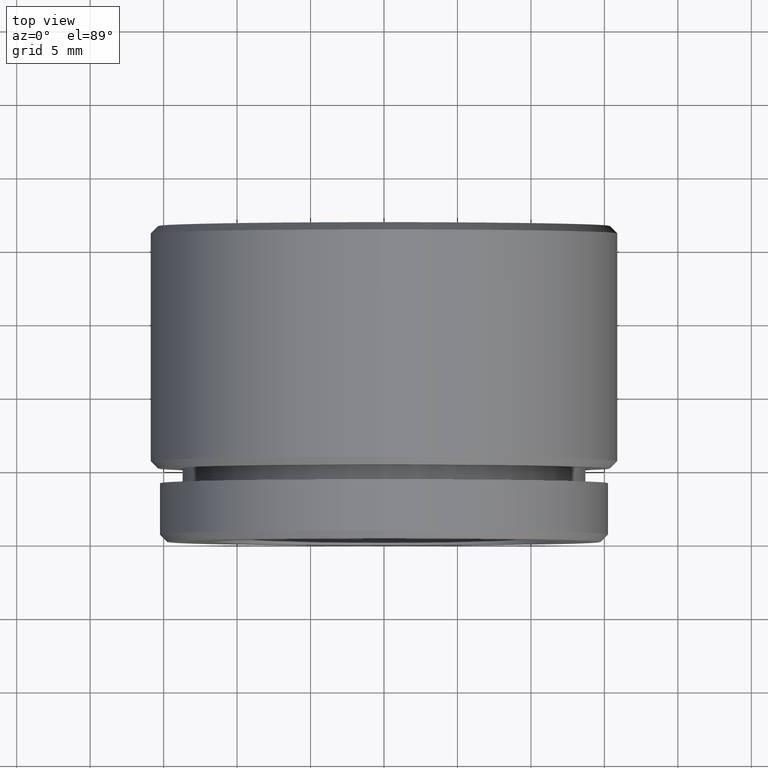
[diagram: clean part render]
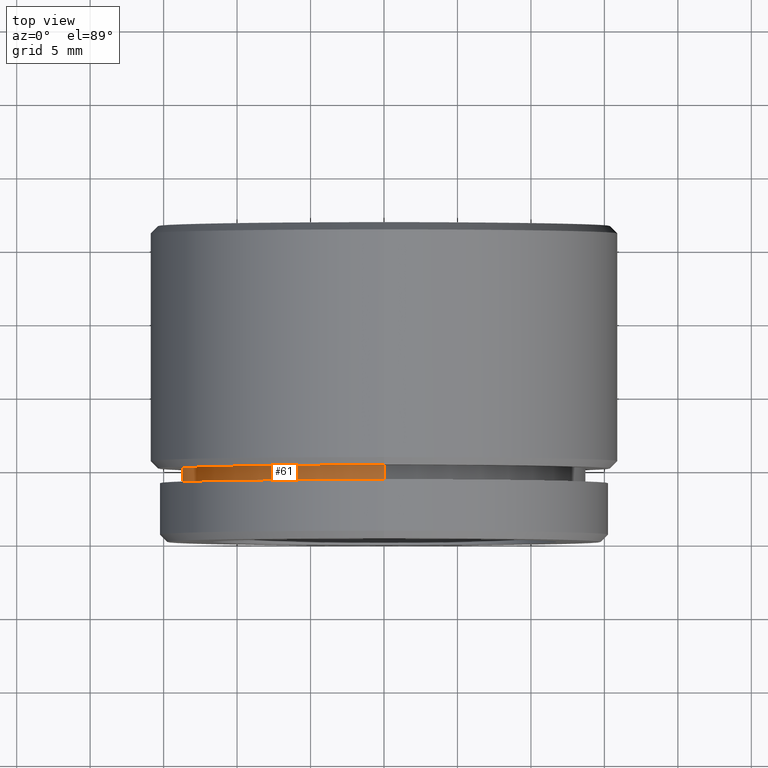
[diagram: same view with one face highlighted and labeled with its STEP entity id]
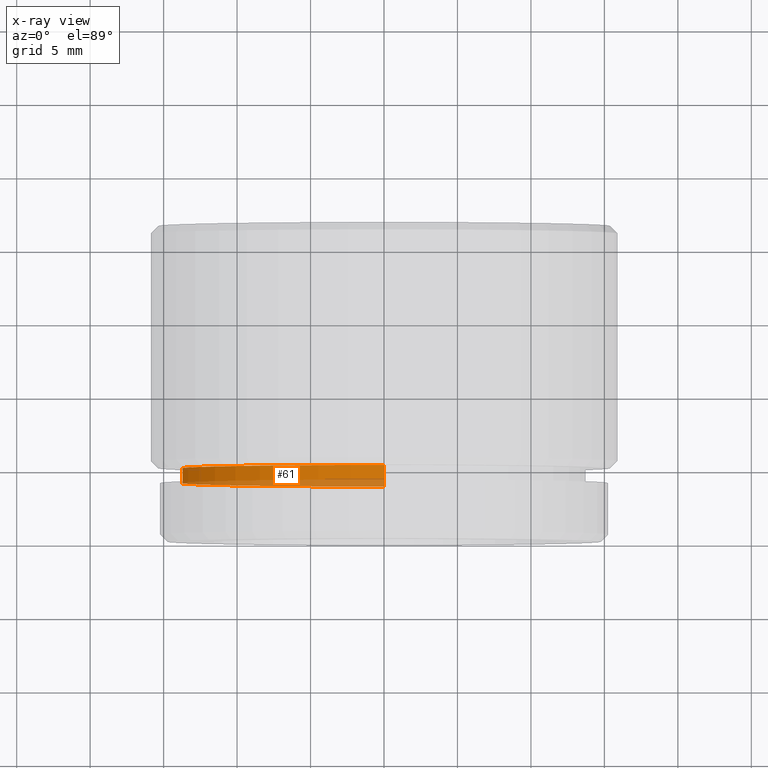
[diagram: x-ray of the same camera — body ghosted, the highlighted face saturated]
A machine part, top view. The second image highlights one B-rep face of the part: STEP entity #61.
The next image is the same camera in x-ray: the body ghosted, the highlighted face saturated — about 28% of this face is hidden behind the body in this view.
In plain terms, the highlighted cylindrical surface (partial cylindrical patch) has radius 13.75 mm, axis along (-0, -1, -0).
Its self-contained STEP definition (entity closure, byte-faithful):
#9 = CARTESIAN_POINT ( 'NONE',  ( 0.0000000000000000000, 0.0000000000000000000, -13.75000000000000000 ) ) ;
#23 = DIRECTION ( 'NONE',  ( 0.0000000000000000000, 0.0000000000000000000, -1.000000000000000000 ) ) ;
#61 = ADVANCED_FACE ( 'NONE', ( #621 ), #435, .T. ) ;
#96 = VERTEX_POINT ( 'NONE', #604 ) ;
#97 = DIRECTION ( 'NONE',  ( -0.0000000000000000000, -1.000000000000000000, -0.0000000000000000000 ) ) ;
#140 = DIRECTION ( 'NONE',  ( -0.0000000000000000000, -1.000000000000000000, -0.0000000000000000000 ) ) ;
#168 = CARTESIAN_POINT ( 'NONE',  ( 0.0000000000000000000, 5.000000000000000000, 0.0000000000000000000 ) ) ;
#169 = DIRECTION ( 'NONE',  ( 0.0000000000000000000, 0.0000000000000000000, -1.000000000000000000 ) ) ;
#198 = CARTESIAN_POINT ( 'NONE',  ( 0.0000000000000000000, 5.000000000000000000, -13.75000000000000000 ) ) ;
#208 = DIRECTION ( 'NONE',  ( -0.0000000000000000000, -1.000000000000000000, -0.0000000000000000000 ) ) ;
#210 = VERTEX_POINT ( 'NONE', #791 ) ;
#241 = ORIENTED_EDGE ( 'NONE', *, *, #515, .F. ) ;
#248 = AXIS2_PLACEMENT_3D ( 'NONE', #321, #860, #281 ) ;
#281 = DIRECTION ( 'NONE',  ( 0.0000000000000000000, 0.0000000000000000000, -1.000000000000000000 ) ) ;
#307 = VECTOR ( 'NONE', #208, 1000.000000000000000 ) ;
#321 = CARTESIAN_POINT ( 'NONE',  ( 0.0000000000000000000, 4.000000000000000000, 0.0000000000000000000 ) ) ;
#348 = CIRCLE ( 'NONE', #248, 13.75000000000000000 ) ;
#404 = AXIS2_PLACEMENT_3D ( 'NONE', #495, #97, #23 ) ;
#418 = VERTEX_POINT ( 'NONE', #441 ) ;
#435 = CYLINDRICAL_SURFACE ( 'NONE', #404, 13.75000000000000000 ) ;
#438 = EDGE_CURVE ( 'NONE', #418, #647, #502, .T. ) ;
#441 = CARTESIAN_POINT ( 'NONE',  ( 1.683889348827610700E-015, 5.000000000000000000, 13.75000000000000000 ) ) ;
#463 = ORIENTED_EDGE ( 'NONE', *, *, #438, .T. ) ;
#495 = CARTESIAN_POINT ( 'NONE',  ( 0.0000000000000000000, 0.0000000000000000000, 0.0000000000000000000 ) ) ;
#502 = CIRCLE ( 'NONE', #596, 13.75000000000000000 ) ;
#515 = EDGE_CURVE ( 'NONE', #418, #210, #792, .T. ) ;
#516 = ORIENTED_EDGE ( 'NONE', *, *, #766, .T. ) ;
#524 = ORIENTED_EDGE ( 'NONE', *, *, #559, .F. ) ;
#559 = EDGE_CURVE ( 'NONE', #210, #96, #348, .T. ) ;
#590 = EDGE_LOOP ( 'NONE', ( #241, #463, #516, #524 ) ) ;
#595 = VECTOR ( 'NONE', #649, 1000.000000000000000 ) ;
#596 = AXIS2_PLACEMENT_3D ( 'NONE', #168, #140, #169 ) ;
#604 = CARTESIAN_POINT ( 'NONE',  ( 0.0000000000000000000, 4.000000000000000000, -13.75000000000000000 ) ) ;
#621 = FACE_OUTER_BOUND ( 'NONE', #590, .T. ) ;
#644 = CARTESIAN_POINT ( 'NONE',  ( 1.683889348827610700E-015, 0.0000000000000000000, 13.75000000000000000 ) ) ;
#647 = VERTEX_POINT ( 'NONE', #198 ) ;
#649 = DIRECTION ( 'NONE',  ( -0.0000000000000000000, -1.000000000000000000, -0.0000000000000000000 ) ) ;
#766 = EDGE_CURVE ( 'NONE', #647, #96, #823, .T. ) ;
#791 = CARTESIAN_POINT ( 'NONE',  ( 1.683889348827610700E-015, 4.000000000000000000, 13.75000000000000000 ) ) ;
#792 = LINE ( 'NONE', #644, #595 ) ;
#823 = LINE ( 'NONE', #9, #307 ) ;
#860 = DIRECTION ( 'NONE',  ( -0.0000000000000000000, -1.000000000000000000, -0.0000000000000000000 ) ) ;